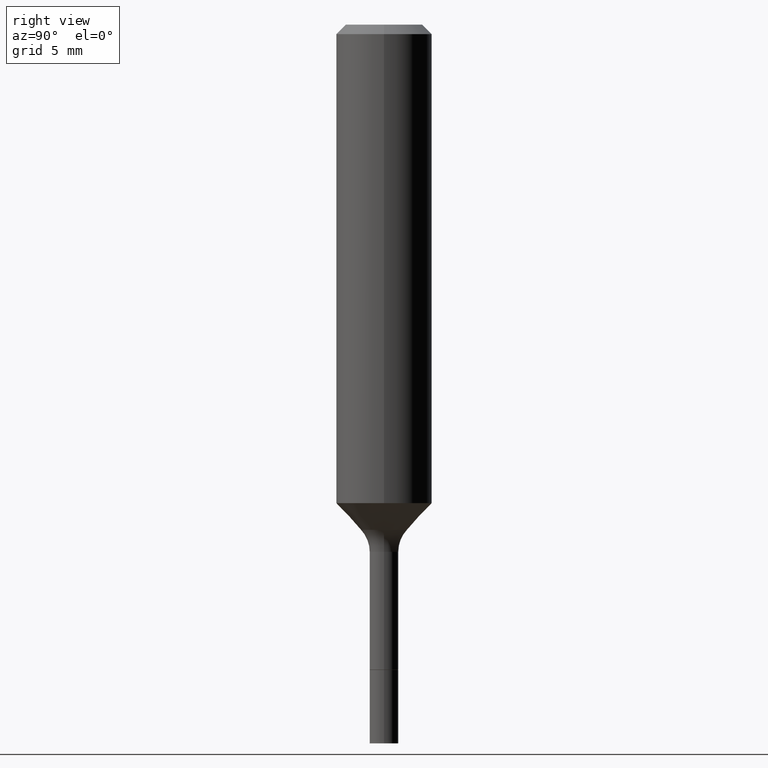
[diagram: clean part render]
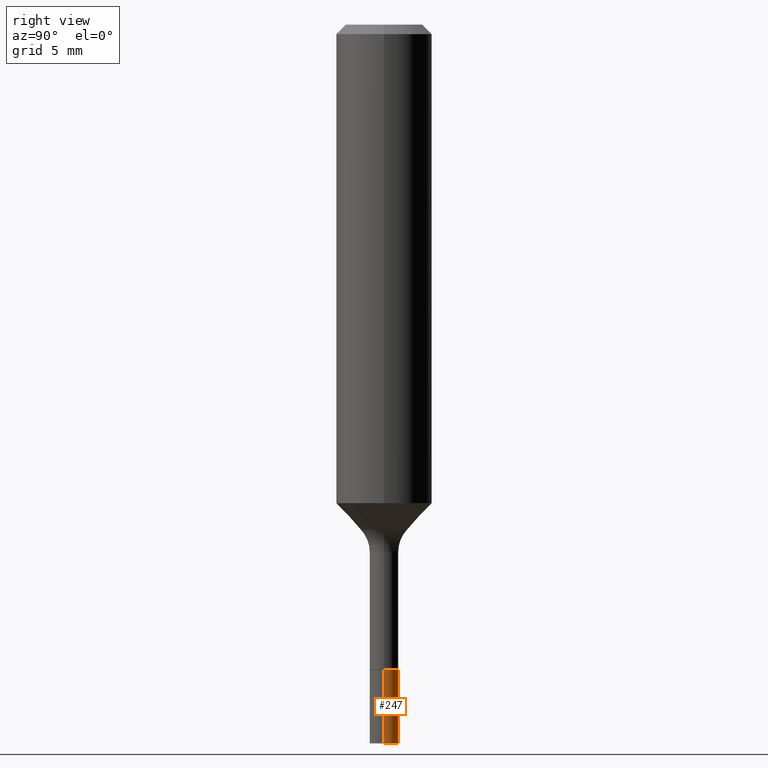
[diagram: same view with one face highlighted and labeled with its STEP entity id]
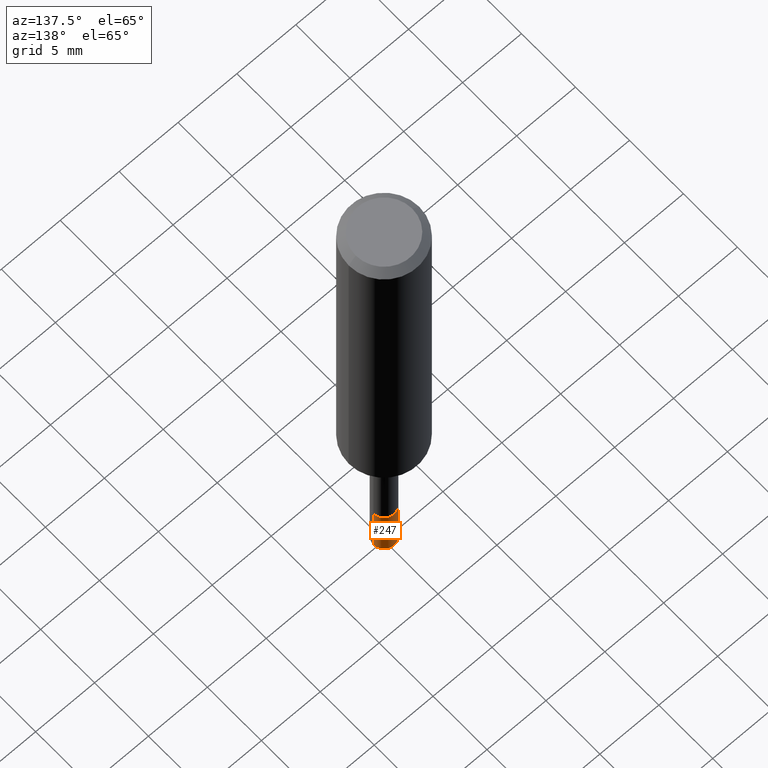
[diagram: same view with one face highlighted and labeled with its STEP entity id]
A machine part, right view. The second image highlights one B-rep face of the part: STEP entity #247.
A second angle (auxiliary view) of the same face is appended — the face is thin or edge-on in the first view.
In plain terms, the highlighted cylindrical surface (edge-blend (fillet) strip) has radius 0.9004 mm, axis along (-0, 0, 1).
Its self-contained STEP definition (entity closure, byte-faithful):
#3 = EDGE_CURVE ( 'NONE', #313, #306, #412, .T. ) ;
#21 = CARTESIAN_POINT ( 'NONE',  ( -0.03545000000000005091, -5.302011965870836161E-15, -1.590700000000000003 ) ) ;
#42 = CARTESIAN_POINT ( 'NONE',  ( 0.03545000000000010643, -6.433403514952379754E-15, -1.771700000000000053 ) ) ;
#50 = CARTESIAN_POINT ( 'NONE',  ( 0.03545000000000000234, -5.801445392621770218E-15, -1.590700000000000003 ) ) ;
#67 = CIRCLE ( 'NONE', #152, 0.03545000000000010643 ) ;
#144 = VERTEX_POINT ( 'NONE', #418 ) ;
#152 = AXIS2_PLACEMENT_3D ( 'NONE', #310, #223, #391 ) ;
#154 = ORIENTED_EDGE ( 'NONE', *, *, #460, .T. ) ;
#177 = DIRECTION ( 'NONE',  ( -2.445468806185136597E-29, 3.491481338843145583E-15, 1.000000000000000000 ) ) ;
#193 = ORIENTED_EDGE ( 'NONE', *, *, #514, .F. ) ;
#196 = CARTESIAN_POINT ( 'NONE',  ( 3.890007229998696371E-29, -5.553899365697792335E-15, -1.590700000000000003 ) ) ;
#217 = ORIENTED_EDGE ( 'NONE', *, *, #3, .F. ) ;
#219 = DIRECTION ( 'NONE',  ( -2.445468806185136877E-29, 3.491481338843145188E-15, 1.000000000000000000 ) ) ;
#223 = DIRECTION ( 'NONE',  ( -2.445468806185136597E-29, 3.491481338843145583E-15, 1.000000000000000000 ) ) ;
#247 = ADVANCED_FACE ( 'NONE', ( #251 ), #335, .T. ) ;
#248 = AXIS2_PLACEMENT_3D ( 'NONE', #196, #357, #396 ) ;
#251 = FACE_OUTER_BOUND ( 'NONE', #353, .T. ) ;
#259 = AXIS2_PLACEMENT_3D ( 'NONE', #293, #177, #492 ) ;
#260 = CARTESIAN_POINT ( 'NONE',  ( 0.03545000000000005091, -5.801445392621771007E-15, -1.590700000000000003 ) ) ;
#263 = DIRECTION ( 'NONE',  ( -2.445468806185136877E-29, 3.491481338843145188E-15, 1.000000000000000000 ) ) ;
#293 = CARTESIAN_POINT ( 'NONE',  ( 3.890007229998696371E-29, -5.553899365697792335E-15, -1.590700000000000003 ) ) ;
#303 = LINE ( 'NONE', #260, #513 ) ;
#306 = VERTEX_POINT ( 'NONE', #415 ) ;
#310 = CARTESIAN_POINT ( 'NONE',  ( 4.332637083918206427E-29, -6.185857488028401081E-15, -1.771700000000000053 ) ) ;
#313 = VERTEX_POINT ( 'NONE', #50 ) ;
#335 = CYLINDRICAL_SURFACE ( 'NONE', #259, 0.03545000000000005091 ) ;
#347 = ORIENTED_EDGE ( 'NONE', *, *, #488, .T. ) ;
#353 = EDGE_LOOP ( 'NONE', ( #154, #347, #217, #193 ) ) ;
#357 = DIRECTION ( 'NONE',  ( -2.445468806185136597E-29, 3.491481338843145583E-15, 1.000000000000000000 ) ) ;
#379 = VECTOR ( 'NONE', #219, 39.37007874015748143 ) ;
#391 = DIRECTION ( 'NONE',  ( 1.000000000000000000, -6.982962677686261977E-15, 0.000000000000000000 ) ) ;
#396 = DIRECTION ( 'NONE',  ( 1.000000000000000000, -6.982962677686254089E-15, 0.000000000000000000 ) ) ;
#412 = CIRCLE ( 'NONE', #248, 0.03545000000000000234 ) ;
#415 = CARTESIAN_POINT ( 'NONE',  ( -0.03545000000000000234, -5.617991027036140929E-15, -1.590700000000000003 ) ) ;
#418 = CARTESIAN_POINT ( 'NONE',  ( -0.03545000000000010643, -5.617991027036140140E-15, -1.771700000000000053 ) ) ;
#460 = EDGE_CURVE ( 'NONE', #515, #144, #67, .T. ) ;
#488 = EDGE_CURVE ( 'NONE', #144, #306, #510, .T. ) ;
#492 = DIRECTION ( 'NONE',  ( 1.000000000000000000, -6.982962677686273021E-15, 0.000000000000000000 ) ) ;
#510 = LINE ( 'NONE', #21, #379 ) ;
#513 = VECTOR ( 'NONE', #263, 39.37007874015748143 ) ;
#514 = EDGE_CURVE ( 'NONE', #515, #313, #303, .T. ) ;
#515 = VERTEX_POINT ( 'NONE', #42 ) ;